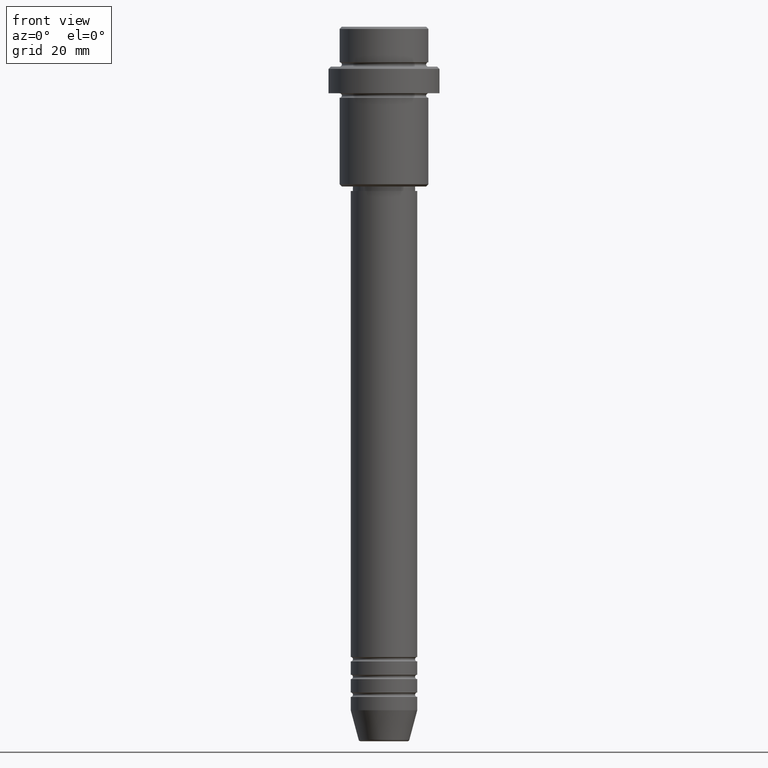
[diagram: clean part render]
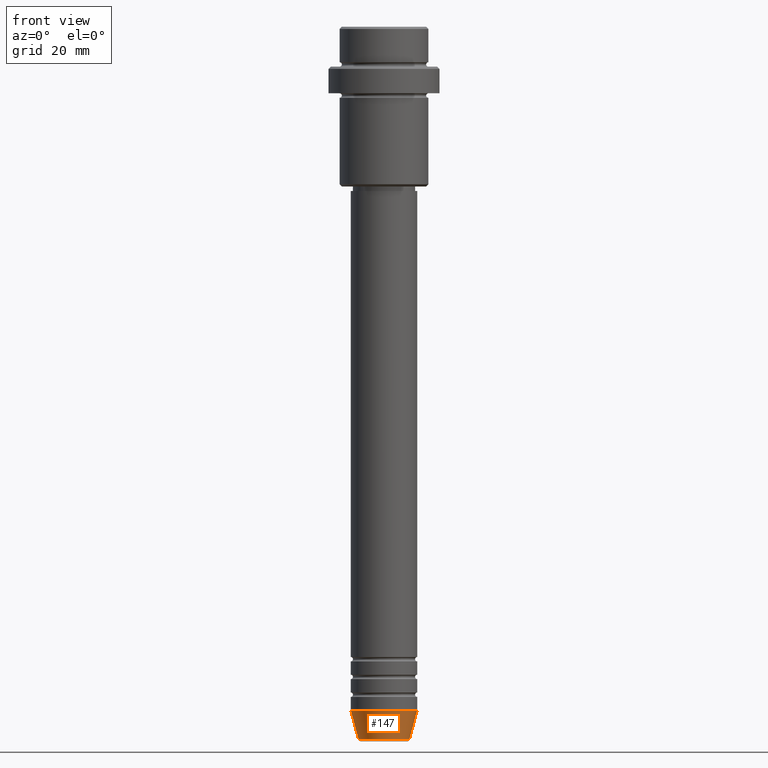
[diagram: same view with one face highlighted and labeled with its STEP entity id]
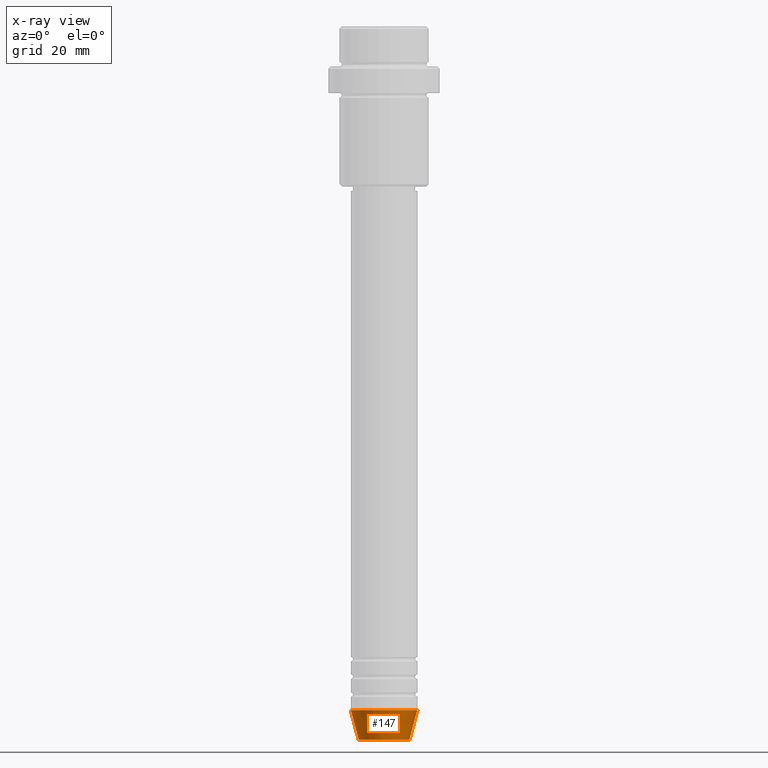
[diagram: x-ray of the same camera — body ghosted, the highlighted face saturated]
A machine part, front view. The second image highlights one B-rep face of the part: STEP entity #147.
The next image is the same camera in x-ray: the body ghosted, the highlighted face saturated — about 0% of this face is hidden behind the body in this view.
In plain terms, the highlighted conical surface has half-angle 15 deg.
Its self-contained STEP definition (entity closure, byte-faithful):
#73 = CARTESIAN_POINT ( 'NONE',  ( 5.723655072137197486, 0.000000000000000000, -160.6294095225512137 ) ) ;
#77 = AXIS2_PLACEMENT_3D ( 'NONE', #801, #146, #462 ) ;
#90 = VERTEX_POINT ( 'NONE', #1198 ) ;
#122 = DIRECTION ( 'NONE',  ( 1.000000000000000000, 0.000000000000000000, 0.000000000000000000 ) ) ;
#146 = DIRECTION ( 'NONE',  ( -0.000000000000000000, -0.000000000000000000, 1.000000000000000000 ) ) ;
#147 = ADVANCED_FACE ( 'NONE', ( #1110 ), #563, .T. ) ;
#149 = LINE ( 'NONE', #582, #1412 ) ;
#162 = EDGE_LOOP ( 'NONE', ( #536, #622, #973, #470 ) ) ;
#304 = DIRECTION ( 'NONE',  ( -0.000000000000000000, -0.000000000000000000, 1.000000000000000000 ) ) ;
#346 = VERTEX_POINT ( 'NONE', #519 ) ;
#371 = VERTEX_POINT ( 'NONE', #73 ) ;
#443 = EDGE_CURVE ( 'NONE', #90, #948, #542, .T. ) ;
#462 = DIRECTION ( 'NONE',  ( 1.000000000000000000, 0.000000000000000000, 0.000000000000000000 ) ) ;
#470 = ORIENTED_EDGE ( 'NONE', *, *, #443, .F. ) ;
#509 = CARTESIAN_POINT ( 'NONE',  ( 0.000000000000000000, 0.000000000000000000, -160.6294095225512137 ) ) ;
#519 = CARTESIAN_POINT ( 'NONE',  ( -5.723655072137197486, 8.097153428560739859E-16, -160.6294095225512137 ) ) ;
#536 = ORIENTED_EDGE ( 'NONE', *, *, #1055, .F. ) ;
#542 = CIRCLE ( 'NONE', #751, 7.500000000000000000 ) ;
#557 = DIRECTION ( 'NONE',  ( -0.000000000000000000, -0.000000000000000000, 1.000000000000000000 ) ) ;
#563 = CONICAL_SURFACE ( 'NONE', #77, 7.500000000000000000, 0.2617993877991500740 ) ;
#566 = VECTOR ( 'NONE', #1221, 1000.000000000000000 ) ;
#582 = CARTESIAN_POINT ( 'NONE',  ( 7.500000000000000000, 0.000000000000000000, -154.0000000000000000 ) ) ;
#588 = AXIS2_PLACEMENT_3D ( 'NONE', #509, #304, #1171 ) ;
#622 = ORIENTED_EDGE ( 'NONE', *, *, #1196, .T. ) ;
#670 = CARTESIAN_POINT ( 'NONE',  ( 7.500000000000000000, 0.000000000000000000, -154.0000000000000000 ) ) ;
#700 = CARTESIAN_POINT ( 'NONE',  ( -7.500000000000000000, 9.184850993605147944E-16, -154.0000000000000000 ) ) ;
#751 = AXIS2_PLACEMENT_3D ( 'NONE', #877, #557, #122 ) ;
#801 = CARTESIAN_POINT ( 'NONE',  ( 0.000000000000000000, 0.000000000000000000, -154.0000000000000000 ) ) ;
#877 = CARTESIAN_POINT ( 'NONE',  ( 0.000000000000000000, 0.000000000000000000, -154.0000000000000000 ) ) ;
#948 = VERTEX_POINT ( 'NONE', #670 ) ;
#973 = ORIENTED_EDGE ( 'NONE', *, *, #1141, .T. ) ;
#1019 = DIRECTION ( 'NONE',  ( 0.2588190451025213501, 0.000000000000000000, 0.9659258262890680902 ) ) ;
#1029 = LINE ( 'NONE', #700, #566 ) ;
#1055 = EDGE_CURVE ( 'NONE', #346, #90, #1029, .T. ) ;
#1110 = FACE_OUTER_BOUND ( 'NONE', #162, .T. ) ;
#1141 = EDGE_CURVE ( 'NONE', #371, #948, #149, .T. ) ;
#1171 = DIRECTION ( 'NONE',  ( 1.000000000000000000, 0.000000000000000000, 0.000000000000000000 ) ) ;
#1196 = EDGE_CURVE ( 'NONE', #346, #371, #1203, .T. ) ;
#1198 = CARTESIAN_POINT ( 'NONE',  ( -7.500000000000000000, 9.184850993605147944E-16, -154.0000000000000000 ) ) ;
#1203 = CIRCLE ( 'NONE', #588, 5.723655072137197486 ) ;
#1221 = DIRECTION ( 'NONE',  ( -0.2588190451025213501, 3.169619151431772337E-17, 0.9659258262890680902 ) ) ;
#1412 = VECTOR ( 'NONE', #1019, 1000.000000000000000 ) ;